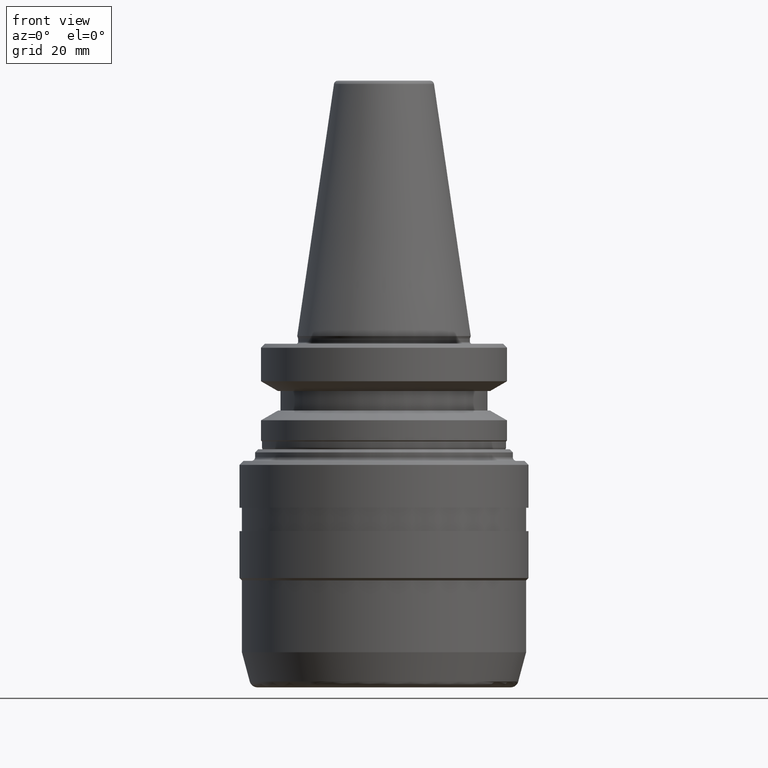
[diagram: clean part render]
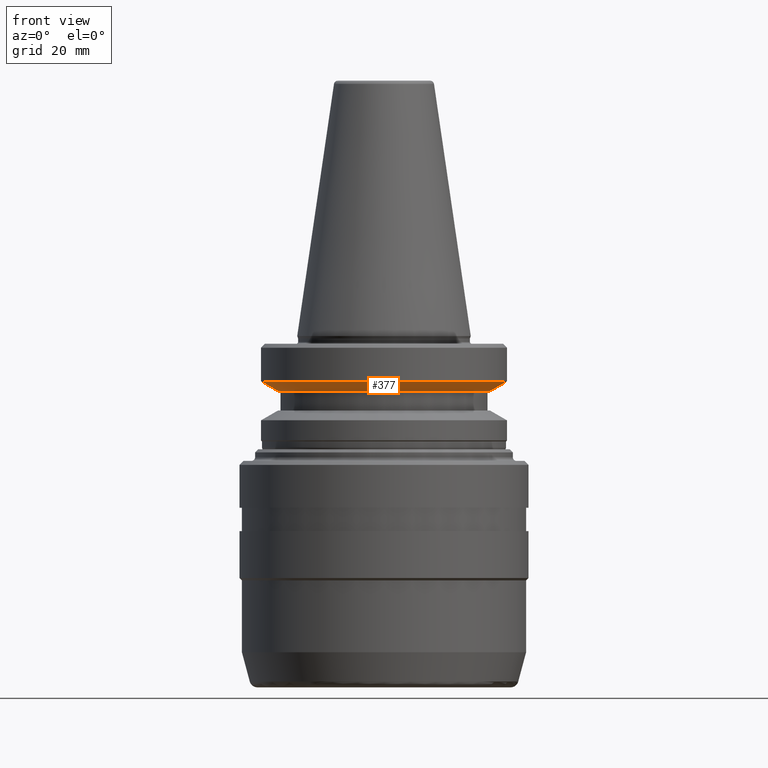
[diagram: same view with one face highlighted and labeled with its STEP entity id]
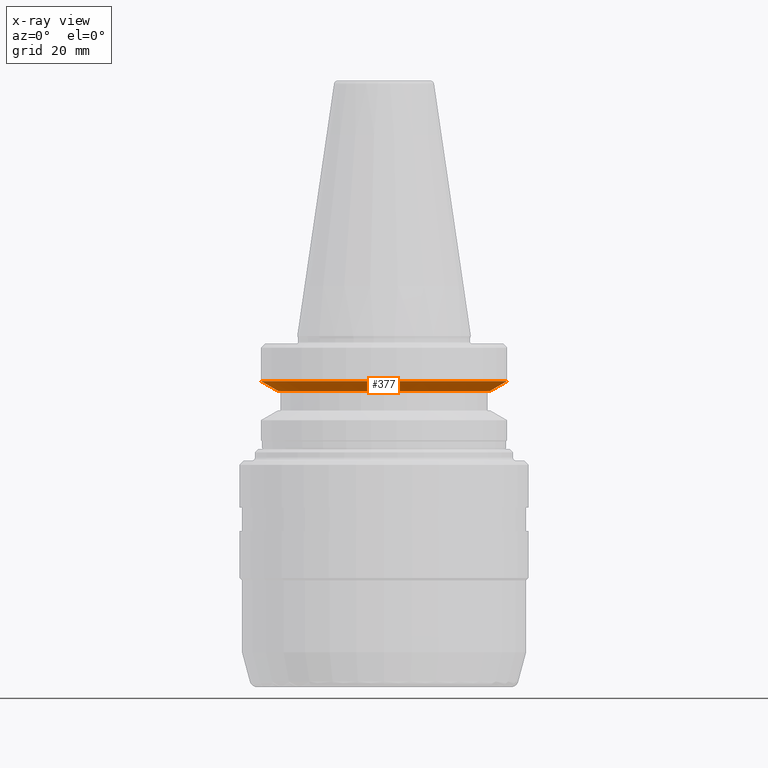
[diagram: x-ray of the same camera — body ghosted, the highlighted face saturated]
A machine part, front view. The second image highlights one B-rep face of the part: STEP entity #377.
The next image is the same camera in x-ray: the body ghosted, the highlighted face saturated — about 0% of this face is hidden behind the body in this view.
In plain terms, the highlighted conical surface has half-angle 60 deg.
Its self-contained STEP definition (entity closure, byte-faithful):
#34 = CARTESIAN_POINT ( 'NONE',  ( -31.50000000000024900, 3.857637417314193500E-015, -11.59985799368445900 ) ) ;
#69 = CIRCLE ( 'NONE', #471, 27.16962701892378000 ) ;
#117 = AXIS2_PLACEMENT_3D ( 'NONE', #541, #772, #802 ) ;
#161 = CONICAL_SURFACE ( 'NONE', #233, 27.16962701892378000, 1.047197551196597000 ) ;
#165 = CARTESIAN_POINT ( 'NONE',  ( 31.50000000000024900, 0.0000000000000000000, -11.59985799368445900 ) ) ;
#221 = EDGE_LOOP ( 'NONE', ( #1087, #1283, #858, #921 ) ) ;
#233 = AXIS2_PLACEMENT_3D ( 'NONE', #889, #778, #1577 ) ;
#310 = DIRECTION ( 'NONE',  ( -0.8660254037844382600, 1.060575238724906400E-016, 0.5000000000000006700 ) ) ;
#361 = VECTOR ( 'NONE', #1340, 1000.000000000000000 ) ;
#377 = ADVANCED_FACE ( 'NONE', ( #701 ), #161, .T. ) ;
#399 = EDGE_CURVE ( 'NONE', #1032, #532, #1200, .T. ) ;
#471 = AXIS2_PLACEMENT_3D ( 'NONE', #1356, #629, #1475 ) ;
#532 = VERTEX_POINT ( 'NONE', #165 ) ;
#541 = CARTESIAN_POINT ( 'NONE',  ( 0.0000000000000000000, 0.0000000000000000000, -11.59985799368445900 ) ) ;
#576 = VERTEX_POINT ( 'NONE', #1251 ) ;
#629 = DIRECTION ( 'NONE',  ( -0.0000000000000000000, -0.0000000000000000000, 1.000000000000000000 ) ) ;
#682 = EDGE_CURVE ( 'NONE', #691, #532, #1003, .T. ) ;
#691 = VERTEX_POINT ( 'NONE', #1176 ) ;
#701 = FACE_OUTER_BOUND ( 'NONE', #221, .T. ) ;
#772 = DIRECTION ( 'NONE',  ( -0.0000000000000000000, -0.0000000000000000000, 1.000000000000000000 ) ) ;
#778 = DIRECTION ( 'NONE',  ( -0.0000000000000000000, -0.0000000000000000000, 1.000000000000000000 ) ) ;
#802 = DIRECTION ( 'NONE',  ( 1.000000000000000000, 0.0000000000000000000, 0.0000000000000000000 ) ) ;
#858 = ORIENTED_EDGE ( 'NONE', *, *, #682, .T. ) ;
#888 = VECTOR ( 'NONE', #310, 1000.000000000000000 ) ;
#889 = CARTESIAN_POINT ( 'NONE',  ( 0.0000000000000000000, 0.0000000000000000000, -14.10000000000044600 ) ) ;
#921 = ORIENTED_EDGE ( 'NONE', *, *, #399, .F. ) ;
#923 = LINE ( 'NONE', #1083, #888 ) ;
#1003 = LINE ( 'NONE', #1565, #361 ) ;
#1030 = EDGE_CURVE ( 'NONE', #576, #1032, #923, .T. ) ;
#1032 = VERTEX_POINT ( 'NONE', #34 ) ;
#1083 = CARTESIAN_POINT ( 'NONE',  ( -27.16962701892378000, 3.327319676275245200E-015, -14.10000000000044600 ) ) ;
#1087 = ORIENTED_EDGE ( 'NONE', *, *, #1030, .F. ) ;
#1176 = CARTESIAN_POINT ( 'NONE',  ( 27.16962701892378000, 0.0000000000000000000, -14.10000000000044600 ) ) ;
#1200 = CIRCLE ( 'NONE', #117, 31.50000000000024900 ) ;
#1251 = CARTESIAN_POINT ( 'NONE',  ( -27.16962701892378000, 3.592478546794719100E-015, -14.10000000000044600 ) ) ;
#1260 = EDGE_CURVE ( 'NONE', #576, #691, #69, .T. ) ;
#1283 = ORIENTED_EDGE ( 'NONE', *, *, #1260, .T. ) ;
#1340 = DIRECTION ( 'NONE',  ( 0.8660254037844382600, 0.0000000000000000000, 0.5000000000000006700 ) ) ;
#1356 = CARTESIAN_POINT ( 'NONE',  ( 0.0000000000000000000, 0.0000000000000000000, -14.10000000000044600 ) ) ;
#1475 = DIRECTION ( 'NONE',  ( 1.000000000000000000, 0.0000000000000000000, 0.0000000000000000000 ) ) ;
#1565 = CARTESIAN_POINT ( 'NONE',  ( 27.16962701892378000, 0.0000000000000000000, -14.10000000000044600 ) ) ;
#1577 = DIRECTION ( 'NONE',  ( 1.000000000000000000, 0.0000000000000000000, 0.0000000000000000000 ) ) ;